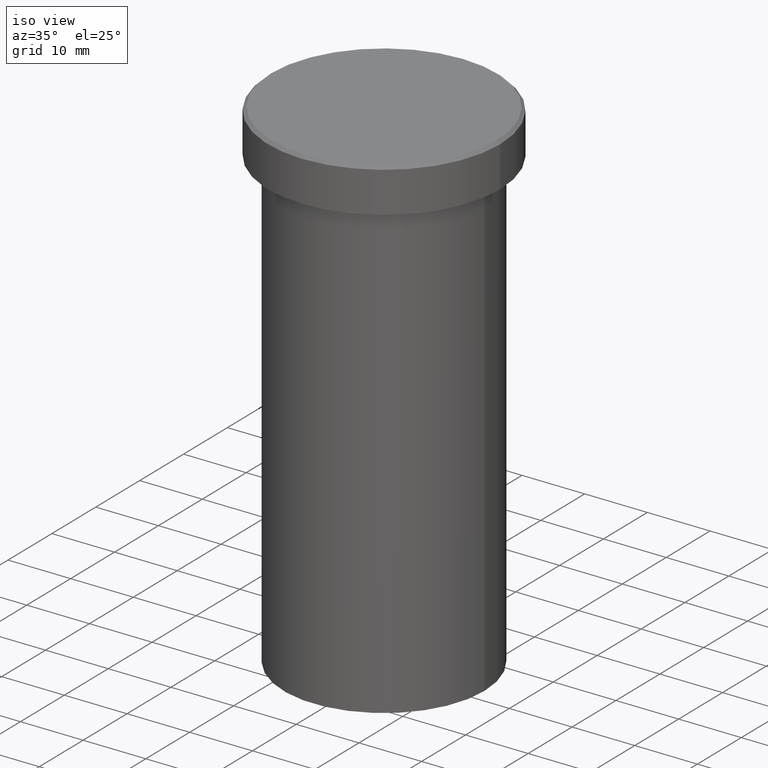
[diagram: clean part render]
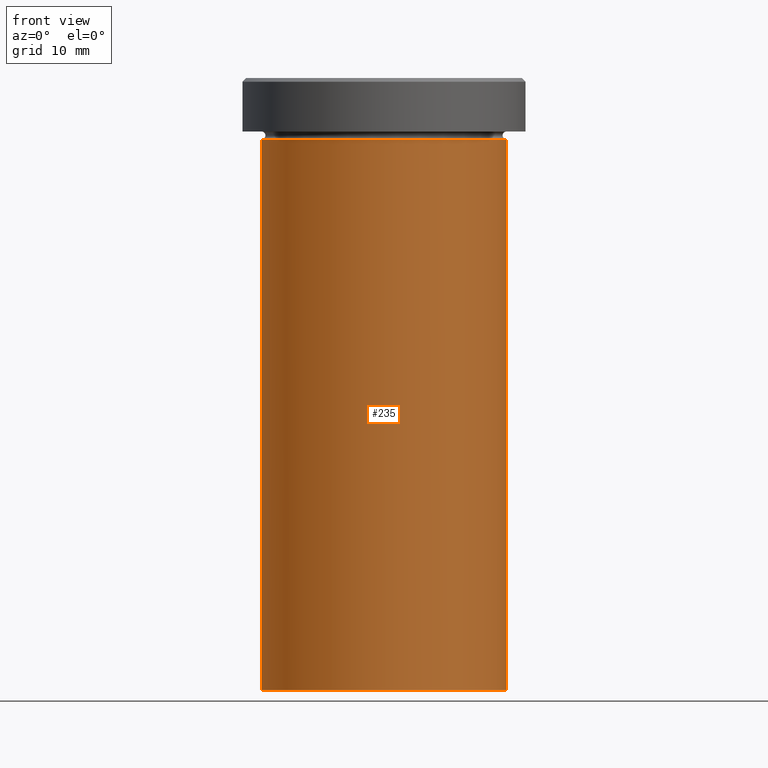
[diagram: tour spotlight — one face highlighted and labeled with its STEP entity id]
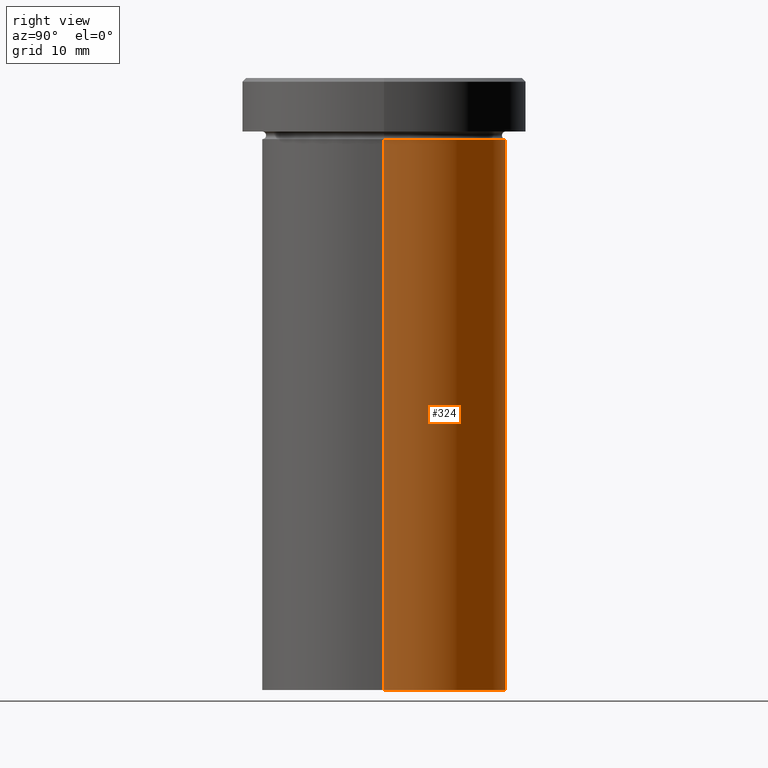
[diagram: tour spotlight — one face highlighted and labeled with its STEP entity id]
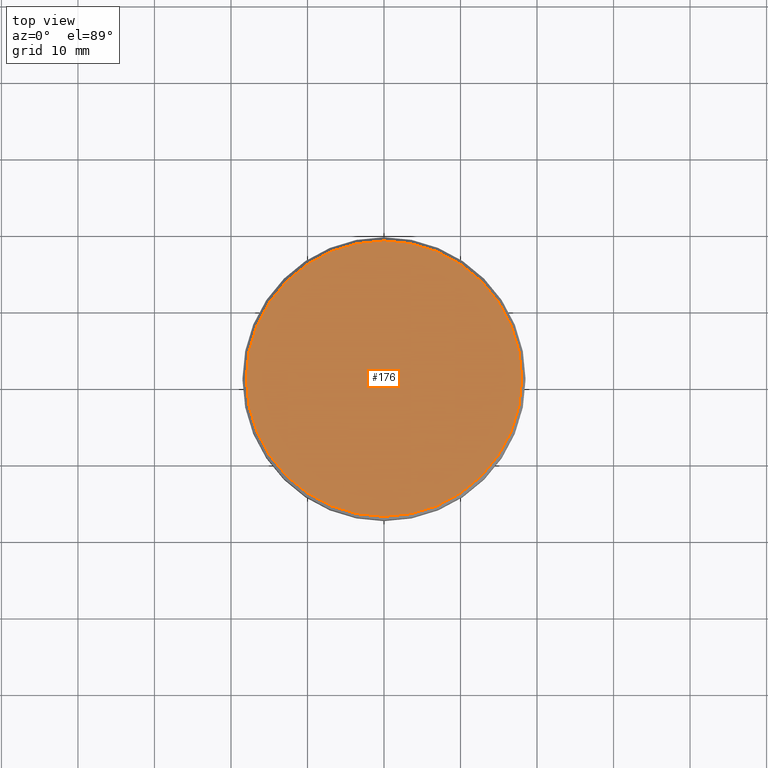
[diagram: tour spotlight — one face highlighted and labeled with its STEP entity id]
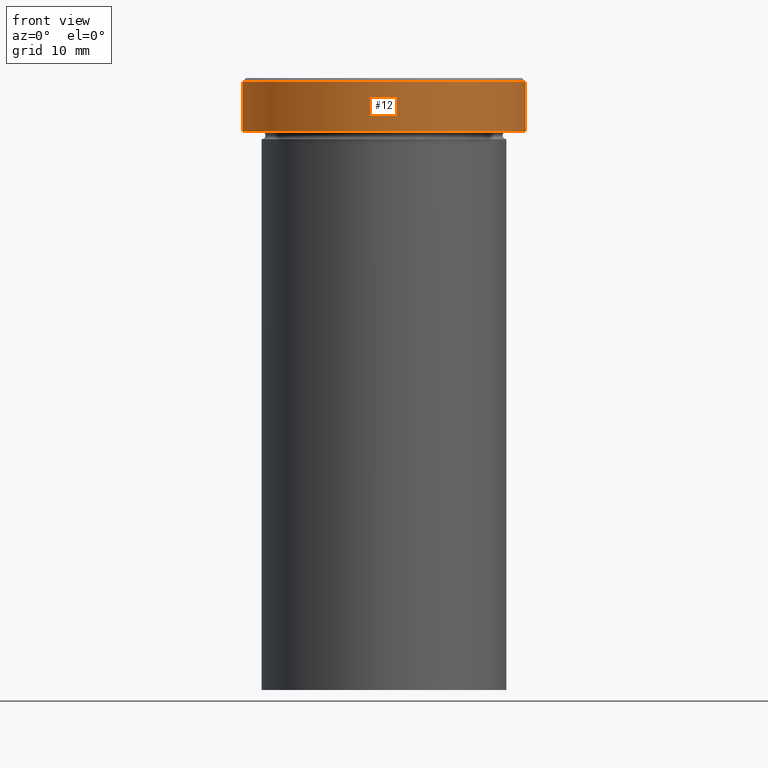
[diagram: tour spotlight — one face highlighted and labeled with its STEP entity id]
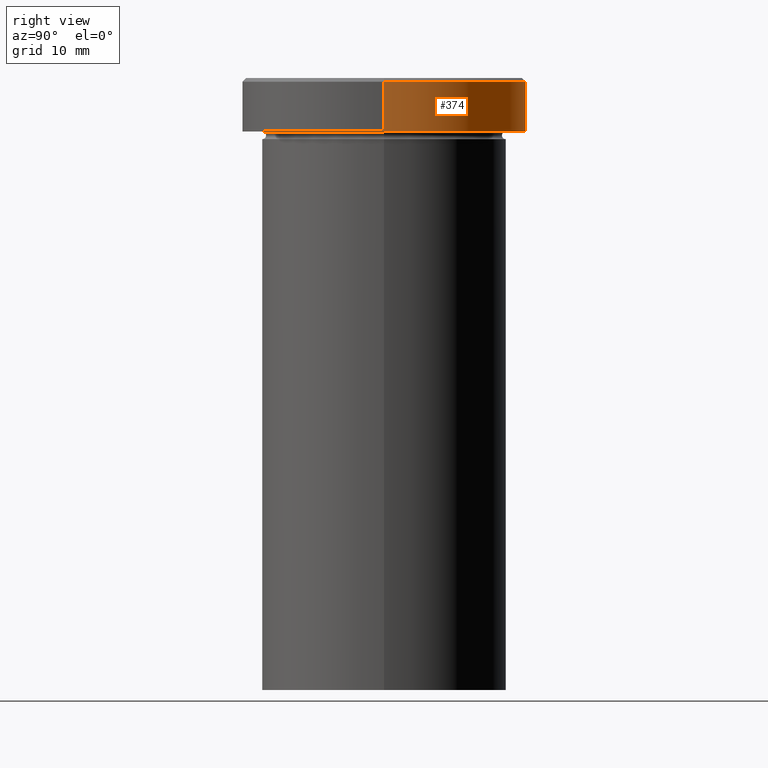
[diagram: tour spotlight — one face highlighted and labeled with its STEP entity id]
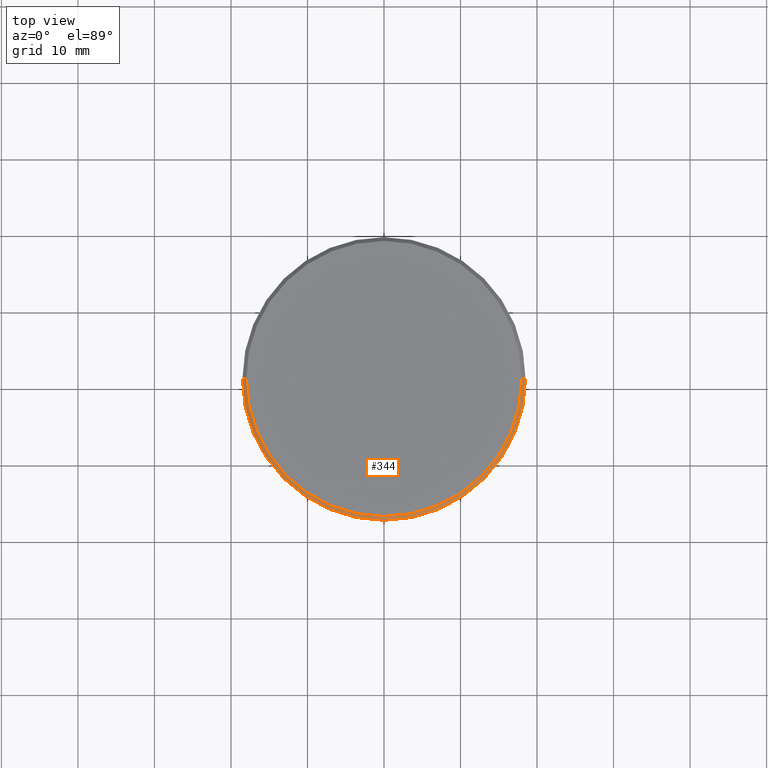
[diagram: tour spotlight — one face highlighted and labeled with its STEP entity id]
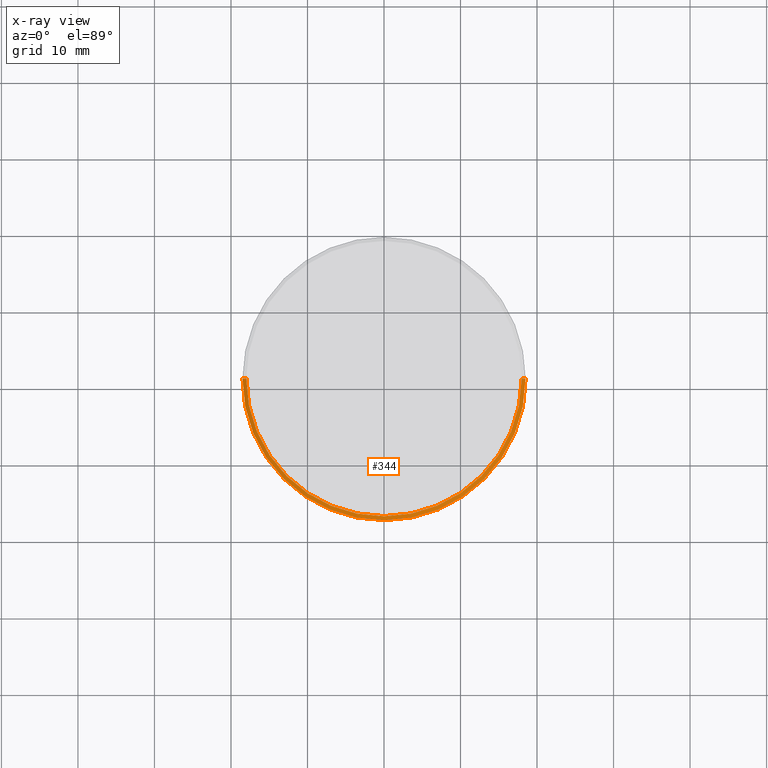
[diagram: x-ray of the same camera — body ghosted, this tour face saturated]
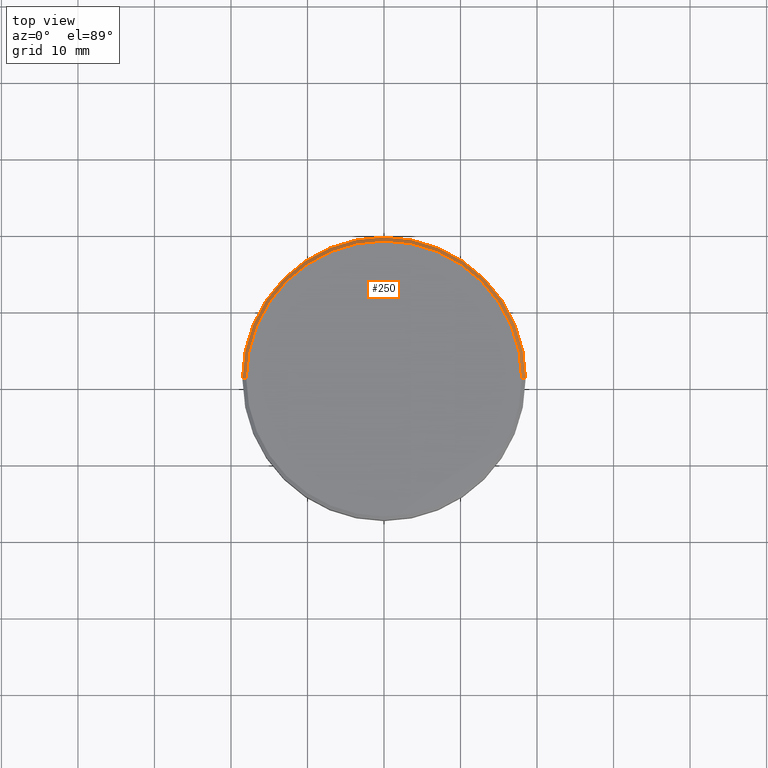
[diagram: tour spotlight — one face highlighted and labeled with its STEP entity id]
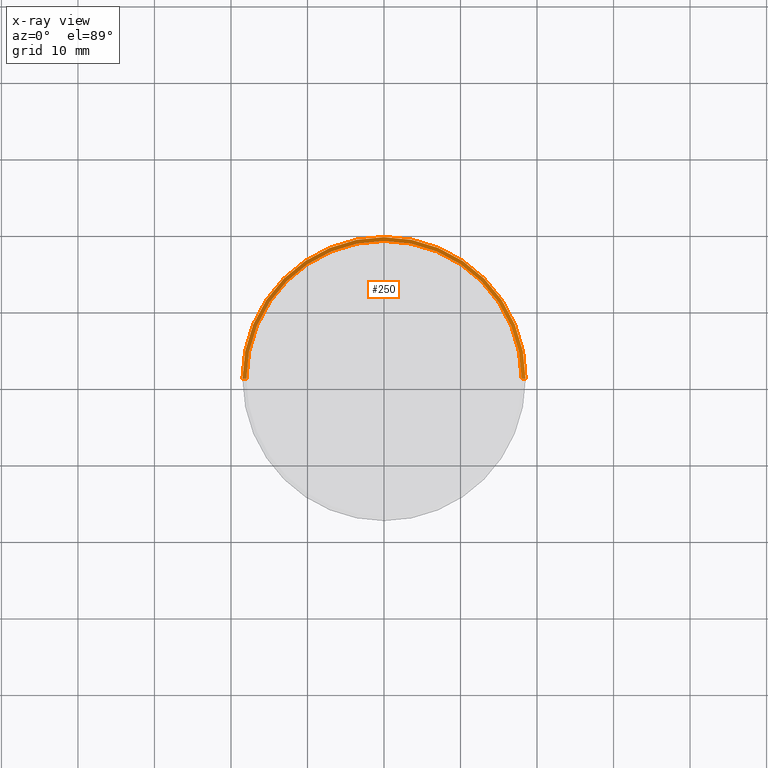
[diagram: x-ray of the same camera — body ghosted, this tour face saturated]
A machine part: a face-by-face anatomy tour. The part has 13 B-rep faces; the first image is the clean iso view, then the 7 largest visible faces are spotlighted one at a time (largest first), each with its STEP entity span.

Face 1 — front view, entity #235. In plain terms, the highlighted cylindrical surface (partial cylindrical patch) has radius 16 mm, axis along (-0, -0, 1).
Definition (entity closure, byte-faithful):
#19 = CARTESIAN_POINT ( 'NONE',  ( 0.000000000000000000, 0.000000000000000000, -80.00000000000000000 ) ) ;
#22 = CARTESIAN_POINT ( 'NONE',  ( 16.00000000000000000, 0.000000000000000000, 0.000000000000000000 ) ) ;
#26 = VERTEX_POINT ( 'NONE', #200 ) ;
#28 = CIRCLE ( 'NONE', #103, 16.00000000000000000 ) ;
#34 = EDGE_LOOP ( 'NONE', ( #343, #405, #262, #67 ) ) ;
#53 = DIRECTION ( 'NONE',  ( -0.000000000000000000, -0.000000000000000000, 1.000000000000000000 ) ) ;
#57 = CARTESIAN_POINT ( 'NONE',  ( -16.00000000000000000, 1.959434878635765131E-15, 0.000000000000000000 ) ) ;
#59 = VERTEX_POINT ( 'NONE', #270 ) ;
#67 = ORIENTED_EDGE ( 'NONE', *, *, #102, .F. ) ;
#79 = EDGE_CURVE ( 'NONE', #59, #283, #82, .T. ) ;
#82 = LINE ( 'NONE', #57, #201 ) ;
#87 = CARTESIAN_POINT ( 'NONE',  ( 0.000000000000000000, 0.000000000000000000, 0.000000000000000000 ) ) ;
#91 = DIRECTION ( 'NONE',  ( 1.000000000000000000, 0.000000000000000000, 0.000000000000000000 ) ) ;
#102 = EDGE_CURVE ( 'NONE', #283, #26, #28, .T. ) ;
#103 = AXIS2_PLACEMENT_3D ( 'NONE', #142, #111, #145 ) ;
#110 = DIRECTION ( 'NONE',  ( -0.000000000000000000, -0.000000000000000000, 1.000000000000000000 ) ) ;
#111 = DIRECTION ( 'NONE',  ( -0.000000000000000000, -0.000000000000000000, 1.000000000000000000 ) ) ;
#142 = CARTESIAN_POINT ( 'NONE',  ( 0.000000000000000000, 0.000000000000000000, -8.000000000000000000 ) ) ;
#145 = DIRECTION ( 'NONE',  ( 1.000000000000000000, 0.000000000000000000, 0.000000000000000000 ) ) ;
#147 = FACE_OUTER_BOUND ( 'NONE', #34, .T. ) ;
#157 = VERTEX_POINT ( 'NONE', #395 ) ;
#200 = CARTESIAN_POINT ( 'NONE',  ( 16.00000000000000000, 0.000000000000000000, -8.000000000000000000 ) ) ;
#201 = VECTOR ( 'NONE', #53, 1000.000000000000000 ) ;
#202 = AXIS2_PLACEMENT_3D ( 'NONE', #19, #406, #91 ) ;
#204 = DIRECTION ( 'NONE',  ( 1.000000000000000000, 0.000000000000000000, 0.000000000000000000 ) ) ;
#235 = ADVANCED_FACE ( 'NONE', ( #147 ), #361, .T. ) ;
#253 = EDGE_CURVE ( 'NONE', #157, #26, #272, .T. ) ;
#254 = VECTOR ( 'NONE', #299, 1000.000000000000000 ) ;
#262 = ORIENTED_EDGE ( 'NONE', *, *, #253, .T. ) ;
#270 = CARTESIAN_POINT ( 'NONE',  ( -16.00000000000000000, 1.959434878635765131E-15, -80.00000000000000000 ) ) ;
#272 = LINE ( 'NONE', #22, #254 ) ;
#283 = VERTEX_POINT ( 'NONE', #333 ) ;
#299 = DIRECTION ( 'NONE',  ( -0.000000000000000000, -0.000000000000000000, 1.000000000000000000 ) ) ;
#310 = CIRCLE ( 'NONE', #202, 16.00000000000000000 ) ;
#333 = CARTESIAN_POINT ( 'NONE',  ( -16.00000000000000000, 1.959434878635765131E-15, -8.000000000000000000 ) ) ;
#343 = ORIENTED_EDGE ( 'NONE', *, *, #79, .F. ) ;
#359 = AXIS2_PLACEMENT_3D ( 'NONE', #87, #110, #204 ) ;
#361 = CYLINDRICAL_SURFACE ( 'NONE', #359, 16.00000000000000000 ) ;
#379 = EDGE_CURVE ( 'NONE', #59, #157, #310, .T. ) ;
#395 = CARTESIAN_POINT ( 'NONE',  ( 16.00000000000000000, 0.000000000000000000, -80.00000000000000000 ) ) ;
#405 = ORIENTED_EDGE ( 'NONE', *, *, #379, .T. ) ;
#406 = DIRECTION ( 'NONE',  ( -0.000000000000000000, -0.000000000000000000, 1.000000000000000000 ) ) ;

Face 2 — right view, entity #324. In plain terms, the highlighted cylindrical surface (partial cylindrical patch) has radius 16 mm, axis along (-0, -0, 1).
Definition (entity closure, byte-faithful):
#7 = DIRECTION ( 'NONE',  ( 1.000000000000000000, 0.000000000000000000, 0.000000000000000000 ) ) ;
#22 = CARTESIAN_POINT ( 'NONE',  ( 16.00000000000000000, 0.000000000000000000, 0.000000000000000000 ) ) ;
#24 = EDGE_CURVE ( 'NONE', #26, #283, #271, .T. ) ;
#26 = VERTEX_POINT ( 'NONE', #200 ) ;
#32 = ORIENTED_EDGE ( 'NONE', *, *, #50, .T. ) ;
#41 = CARTESIAN_POINT ( 'NONE',  ( 0.000000000000000000, 0.000000000000000000, -80.00000000000000000 ) ) ;
#45 = ORIENTED_EDGE ( 'NONE', *, *, #24, .F. ) ;
#50 = EDGE_CURVE ( 'NONE', #157, #59, #371, .T. ) ;
#53 = DIRECTION ( 'NONE',  ( -0.000000000000000000, -0.000000000000000000, 1.000000000000000000 ) ) ;
#57 = CARTESIAN_POINT ( 'NONE',  ( -16.00000000000000000, 1.959434878635765131E-15, 0.000000000000000000 ) ) ;
#59 = VERTEX_POINT ( 'NONE', #270 ) ;
#63 = FACE_OUTER_BOUND ( 'NONE', #171, .T. ) ;
#79 = EDGE_CURVE ( 'NONE', #59, #283, #82, .T. ) ;
#82 = LINE ( 'NONE', #57, #201 ) ;
#88 = CARTESIAN_POINT ( 'NONE',  ( 0.000000000000000000, 0.000000000000000000, 0.000000000000000000 ) ) ;
#140 = DIRECTION ( 'NONE',  ( -0.000000000000000000, -0.000000000000000000, 1.000000000000000000 ) ) ;
#157 = VERTEX_POINT ( 'NONE', #395 ) ;
#160 = AXIS2_PLACEMENT_3D ( 'NONE', #41, #163, #7 ) ;
#163 = DIRECTION ( 'NONE',  ( -0.000000000000000000, -0.000000000000000000, 1.000000000000000000 ) ) ;
#171 = EDGE_LOOP ( 'NONE', ( #32, #346, #45, #363 ) ) ;
#200 = CARTESIAN_POINT ( 'NONE',  ( 16.00000000000000000, 0.000000000000000000, -8.000000000000000000 ) ) ;
#201 = VECTOR ( 'NONE', #53, 1000.000000000000000 ) ;
#231 = CARTESIAN_POINT ( 'NONE',  ( 0.000000000000000000, 0.000000000000000000, -8.000000000000000000 ) ) ;
#246 = DIRECTION ( 'NONE',  ( 1.000000000000000000, 0.000000000000000000, 0.000000000000000000 ) ) ;
#251 = CYLINDRICAL_SURFACE ( 'NONE', #277, 16.00000000000000000 ) ;
#253 = EDGE_CURVE ( 'NONE', #157, #26, #272, .T. ) ;
#254 = VECTOR ( 'NONE', #299, 1000.000000000000000 ) ;
#270 = CARTESIAN_POINT ( 'NONE',  ( -16.00000000000000000, 1.959434878635765131E-15, -80.00000000000000000 ) ) ;
#271 = CIRCLE ( 'NONE', #365, 16.00000000000000000 ) ;
#272 = LINE ( 'NONE', #22, #254 ) ;
#277 = AXIS2_PLACEMENT_3D ( 'NONE', #88, #337, #246 ) ;
#283 = VERTEX_POINT ( 'NONE', #333 ) ;
#299 = DIRECTION ( 'NONE',  ( -0.000000000000000000, -0.000000000000000000, 1.000000000000000000 ) ) ;
#324 = ADVANCED_FACE ( 'NONE', ( #63 ), #251, .T. ) ;
#333 = CARTESIAN_POINT ( 'NONE',  ( -16.00000000000000000, 1.959434878635765131E-15, -8.000000000000000000 ) ) ;
#337 = DIRECTION ( 'NONE',  ( -0.000000000000000000, -0.000000000000000000, 1.000000000000000000 ) ) ;
#346 = ORIENTED_EDGE ( 'NONE', *, *, #79, .T. ) ;
#363 = ORIENTED_EDGE ( 'NONE', *, *, #253, .F. ) ;
#365 = AXIS2_PLACEMENT_3D ( 'NONE', #231, #140, #389 ) ;
#371 = CIRCLE ( 'NONE', #160, 16.00000000000000000 ) ;
#389 = DIRECTION ( 'NONE',  ( 1.000000000000000000, 0.000000000000000000, 0.000000000000000000 ) ) ;
#395 = CARTESIAN_POINT ( 'NONE',  ( 16.00000000000000000, 0.000000000000000000, -80.00000000000000000 ) ) ;

Face 3 — top view, entity #176. In plain terms, the highlighted planar face has unit normal (0, -0, 1).
Definition (entity closure, byte-faithful):
#1 = AXIS2_PLACEMENT_3D ( 'NONE', #48, #394, #180 ) ;
#2 = AXIS2_PLACEMENT_3D ( 'NONE', #370, #89, #249 ) ;
#14 = PLANE ( 'NONE',  #1 ) ;
#48 = CARTESIAN_POINT ( 'NONE',  ( 0.000000000000000000, 0.000000000000000000, 0.000000000000000000 ) ) ;
#89 = DIRECTION ( 'NONE',  ( -0.000000000000000000, -0.000000000000000000, 1.000000000000000000 ) ) ;
#172 = FACE_OUTER_BOUND ( 'NONE', #307, .T. ) ;
#176 = ADVANCED_FACE ( 'NONE', ( #172 ), #14, .T. ) ;
#180 = DIRECTION ( 'NONE',  ( 1.000000000000000000, 0.000000000000000000, 0.000000000000000000 ) ) ;
#186 = VERTEX_POINT ( 'NONE', #356 ) ;
#191 = EDGE_CURVE ( 'NONE', #353, #186, #196, .T. ) ;
#196 = CIRCLE ( 'NONE', #316, 17.99999999999998934 ) ;
#249 = DIRECTION ( 'NONE',  ( 1.000000000000000000, 0.000000000000000000, 0.000000000000000000 ) ) ;
#295 = CARTESIAN_POINT ( 'NONE',  ( 0.000000000000000000, 0.000000000000000000, 0.000000000000000000 ) ) ;
#307 = EDGE_LOOP ( 'NONE', ( #399, #408 ) ) ;
#316 = AXIS2_PLACEMENT_3D ( 'NONE', #295, #358, #329 ) ;
#329 = DIRECTION ( 'NONE',  ( 1.000000000000000000, 0.000000000000000000, 0.000000000000000000 ) ) ;
#353 = VERTEX_POINT ( 'NONE', #364 ) ;
#356 = CARTESIAN_POINT ( 'NONE',  ( -17.99999999999998934, 0.000000000000000000, 0.000000000000000000 ) ) ;
#358 = DIRECTION ( 'NONE',  ( -0.000000000000000000, -0.000000000000000000, 1.000000000000000000 ) ) ;
#360 = CIRCLE ( 'NONE', #2, 17.99999999999998934 ) ;
#364 = CARTESIAN_POINT ( 'NONE',  ( 17.99999999999998934, 2.234980408443918820E-15, 0.000000000000000000 ) ) ;
#370 = CARTESIAN_POINT ( 'NONE',  ( 0.000000000000000000, 0.000000000000000000, 0.000000000000000000 ) ) ;
#376 = EDGE_CURVE ( 'NONE', #186, #353, #360, .T. ) ;
#394 = DIRECTION ( 'NONE',  ( 0.000000000000000000, -0.000000000000000000, 1.000000000000000000 ) ) ;
#399 = ORIENTED_EDGE ( 'NONE', *, *, #376, .T. ) ;
#408 = ORIENTED_EDGE ( 'NONE', *, *, #191, .T. ) ;

Face 4 — front view, entity #12. In plain terms, the highlighted cylindrical surface (partial cylindrical patch) has radius 18.5 mm, axis along (-0, -0, 1).
Definition (entity closure, byte-faithful):
#8 = EDGE_CURVE ( 'NONE', #279, #90, #46, .T. ) ;
#11 = DIRECTION ( 'NONE',  ( 1.000000000000000000, 0.000000000000000000, 0.000000000000000000 ) ) ;
#12 = ADVANCED_FACE ( 'NONE', ( #43 ), #74, .T. ) ;
#43 = FACE_OUTER_BOUND ( 'NONE', #124, .T. ) ;
#46 = CIRCLE ( 'NONE', #168, 18.50000000000000000 ) ;
#52 = EDGE_CURVE ( 'NONE', #97, #381, #391, .T. ) ;
#58 = AXIS2_PLACEMENT_3D ( 'NONE', #99, #321, #11 ) ;
#74 = CYLINDRICAL_SURFACE ( 'NONE', #58, 18.50000000000000000 ) ;
#85 = DIRECTION ( 'NONE',  ( -0.000000000000000000, -0.000000000000000000, 1.000000000000000000 ) ) ;
#86 = EDGE_CURVE ( 'NONE', #279, #381, #332, .T. ) ;
#90 = VERTEX_POINT ( 'NONE', #239 ) ;
#94 = VECTOR ( 'NONE', #85, 1000.000000000000000 ) ;
#97 = VERTEX_POINT ( 'NONE', #240 ) ;
#99 = CARTESIAN_POINT ( 'NONE',  ( 0.000000000000000000, 0.000000000000000000, 0.000000000000000000 ) ) ;
#124 = EDGE_LOOP ( 'NONE', ( #199, #128, #184, #292 ) ) ;
#128 = ORIENTED_EDGE ( 'NONE', *, *, #8, .T. ) ;
#129 = VECTOR ( 'NONE', #305, 1000.000000000000000 ) ;
#131 = CARTESIAN_POINT ( 'NONE',  ( 0.000000000000000000, 0.000000000000000000, -6.999999999999999112 ) ) ;
#136 = DIRECTION ( 'NONE',  ( 0.000000000000000000, 0.000000000000000000, -1.000000000000000000 ) ) ;
#168 = AXIS2_PLACEMENT_3D ( 'NONE', #131, #258, #378 ) ;
#184 = ORIENTED_EDGE ( 'NONE', *, *, #306, .T. ) ;
#199 = ORIENTED_EDGE ( 'NONE', *, *, #86, .F. ) ;
#219 = LINE ( 'NONE', #302, #129 ) ;
#239 = CARTESIAN_POINT ( 'NONE',  ( 18.50000000000000000, 0.000000000000000000, -6.999999999999999112 ) ) ;
#240 = CARTESIAN_POINT ( 'NONE',  ( 18.50000000000000000, 0.000000000000000000, -0.5000000000000213163 ) ) ;
#258 = DIRECTION ( 'NONE',  ( -0.000000000000000000, -0.000000000000000000, 1.000000000000000000 ) ) ;
#264 = DIRECTION ( 'NONE',  ( 1.000000000000000000, 0.000000000000000000, 0.000000000000000000 ) ) ;
#265 = CARTESIAN_POINT ( 'NONE',  ( -18.50000000000000000, 2.265596578422603396E-15, 0.000000000000000000 ) ) ;
#279 = VERTEX_POINT ( 'NONE', #397 ) ;
#284 = AXIS2_PLACEMENT_3D ( 'NONE', #288, #136, #264 ) ;
#288 = CARTESIAN_POINT ( 'NONE',  ( 0.000000000000000000, 0.000000000000000000, -0.5000000000000213163 ) ) ;
#292 = ORIENTED_EDGE ( 'NONE', *, *, #52, .T. ) ;
#302 = CARTESIAN_POINT ( 'NONE',  ( 18.50000000000000000, 0.000000000000000000, 0.000000000000000000 ) ) ;
#305 = DIRECTION ( 'NONE',  ( -0.000000000000000000, -0.000000000000000000, 1.000000000000000000 ) ) ;
#306 = EDGE_CURVE ( 'NONE', #90, #97, #219, .T. ) ;
#311 = CARTESIAN_POINT ( 'NONE',  ( -18.50000000000000000, 2.265596578422603396E-15, -0.5000000000000213163 ) ) ;
#321 = DIRECTION ( 'NONE',  ( -0.000000000000000000, -0.000000000000000000, 1.000000000000000000 ) ) ;
#332 = LINE ( 'NONE', #265, #94 ) ;
#378 = DIRECTION ( 'NONE',  ( 1.000000000000000000, 0.000000000000000000, 0.000000000000000000 ) ) ;
#381 = VERTEX_POINT ( 'NONE', #311 ) ;
#391 = CIRCLE ( 'NONE', #284, 18.50000000000000000 ) ;
#397 = CARTESIAN_POINT ( 'NONE',  ( -18.50000000000000000, 2.265596578422603396E-15, -6.999999999999999112 ) ) ;

Face 5 — right view, entity #374. In plain terms, the highlighted cylindrical surface (partial cylindrical patch) has radius 18.5 mm, axis along (-0, -0, 1).
Definition (entity closure, byte-faithful):
#17 = DIRECTION ( 'NONE',  ( 1.000000000000000000, 0.000000000000000000, 0.000000000000000000 ) ) ;
#18 = CARTESIAN_POINT ( 'NONE',  ( 0.000000000000000000, 0.000000000000000000, -6.999999999999999112 ) ) ;
#20 = AXIS2_PLACEMENT_3D ( 'NONE', #221, #62, #188 ) ;
#62 = DIRECTION ( 'NONE',  ( -0.000000000000000000, -0.000000000000000000, 1.000000000000000000 ) ) ;
#78 = CIRCLE ( 'NONE', #208, 18.50000000000000000 ) ;
#85 = DIRECTION ( 'NONE',  ( -0.000000000000000000, -0.000000000000000000, 1.000000000000000000 ) ) ;
#86 = EDGE_CURVE ( 'NONE', #279, #381, #332, .T. ) ;
#90 = VERTEX_POINT ( 'NONE', #239 ) ;
#94 = VECTOR ( 'NONE', #85, 1000.000000000000000 ) ;
#97 = VERTEX_POINT ( 'NONE', #240 ) ;
#113 = EDGE_CURVE ( 'NONE', #90, #279, #78, .T. ) ;
#120 = DIRECTION ( 'NONE',  ( 1.000000000000000000, 0.000000000000000000, 0.000000000000000000 ) ) ;
#126 = CYLINDRICAL_SURFACE ( 'NONE', #20, 18.50000000000000000 ) ;
#129 = VECTOR ( 'NONE', #305, 1000.000000000000000 ) ;
#183 = FACE_OUTER_BOUND ( 'NONE', #326, .T. ) ;
#188 = DIRECTION ( 'NONE',  ( 1.000000000000000000, 0.000000000000000000, 0.000000000000000000 ) ) ;
#198 = ORIENTED_EDGE ( 'NONE', *, *, #86, .T. ) ;
#208 = AXIS2_PLACEMENT_3D ( 'NONE', #18, #327, #17 ) ;
#219 = LINE ( 'NONE', #302, #129 ) ;
#221 = CARTESIAN_POINT ( 'NONE',  ( 0.000000000000000000, 0.000000000000000000, 0.000000000000000000 ) ) ;
#239 = CARTESIAN_POINT ( 'NONE',  ( 18.50000000000000000, 0.000000000000000000, -6.999999999999999112 ) ) ;
#240 = CARTESIAN_POINT ( 'NONE',  ( 18.50000000000000000, 0.000000000000000000, -0.5000000000000213163 ) ) ;
#256 = ORIENTED_EDGE ( 'NONE', *, *, #113, .T. ) ;
#265 = CARTESIAN_POINT ( 'NONE',  ( -18.50000000000000000, 2.265596578422603396E-15, 0.000000000000000000 ) ) ;
#279 = VERTEX_POINT ( 'NONE', #397 ) ;
#281 = CARTESIAN_POINT ( 'NONE',  ( 0.000000000000000000, 0.000000000000000000, -0.5000000000000213163 ) ) ;
#286 = ORIENTED_EDGE ( 'NONE', *, *, #306, .F. ) ;
#302 = CARTESIAN_POINT ( 'NONE',  ( 18.50000000000000000, 0.000000000000000000, 0.000000000000000000 ) ) ;
#304 = ORIENTED_EDGE ( 'NONE', *, *, #367, .T. ) ;
#305 = DIRECTION ( 'NONE',  ( -0.000000000000000000, -0.000000000000000000, 1.000000000000000000 ) ) ;
#306 = EDGE_CURVE ( 'NONE', #90, #97, #219, .T. ) ;
#311 = CARTESIAN_POINT ( 'NONE',  ( -18.50000000000000000, 2.265596578422603396E-15, -0.5000000000000213163 ) ) ;
#326 = EDGE_LOOP ( 'NONE', ( #256, #198, #304, #286 ) ) ;
#327 = DIRECTION ( 'NONE',  ( -0.000000000000000000, -0.000000000000000000, 1.000000000000000000 ) ) ;
#330 = CIRCLE ( 'NONE', #372, 18.50000000000000000 ) ;
#332 = LINE ( 'NONE', #265, #94 ) ;
#338 = DIRECTION ( 'NONE',  ( 0.000000000000000000, 0.000000000000000000, -1.000000000000000000 ) ) ;
#367 = EDGE_CURVE ( 'NONE', #381, #97, #330, .T. ) ;
#372 = AXIS2_PLACEMENT_3D ( 'NONE', #281, #338, #120 ) ;
#374 = ADVANCED_FACE ( 'NONE', ( #183 ), #126, .T. ) ;
#381 = VERTEX_POINT ( 'NONE', #311 ) ;
#397 = CARTESIAN_POINT ( 'NONE',  ( -18.50000000000000000, 2.265596578422603396E-15, -6.999999999999999112 ) ) ;

Face 6 — top view, entity #344. An x-ray twin of the same camera follows (body ghosted, this face saturated) — the face is partly hidden behind the body. In plain terms, the highlighted conical surface has half-angle 45 deg.
Definition (entity closure, byte-faithful):
#2 = AXIS2_PLACEMENT_3D ( 'NONE', #370, #89, #249 ) ;
#13 = LINE ( 'NONE', #390, #153 ) ;
#47 = ORIENTED_EDGE ( 'NONE', *, *, #125, .F. ) ;
#52 = EDGE_CURVE ( 'NONE', #97, #381, #391, .T. ) ;
#81 = CARTESIAN_POINT ( 'NONE',  ( -17.99999999999998934, 0.000000000000000000, 0.000000000000000000 ) ) ;
#84 = AXIS2_PLACEMENT_3D ( 'NONE', #400, #216, #92 ) ;
#89 = DIRECTION ( 'NONE',  ( -0.000000000000000000, -0.000000000000000000, 1.000000000000000000 ) ) ;
#92 = DIRECTION ( 'NONE',  ( -1.000000000000000000, 0.000000000000000000, 0.000000000000000000 ) ) ;
#97 = VERTEX_POINT ( 'NONE', #240 ) ;
#125 = EDGE_CURVE ( 'NONE', #353, #97, #13, .T. ) ;
#136 = DIRECTION ( 'NONE',  ( 0.000000000000000000, 0.000000000000000000, -1.000000000000000000 ) ) ;
#153 = VECTOR ( 'NONE', #207, 1000.000000000000114 ) ;
#186 = VERTEX_POINT ( 'NONE', #356 ) ;
#197 = CONICAL_SURFACE ( 'NONE', #84, 17.99999999999998934, 0.7853981633974380649 ) ;
#207 = DIRECTION ( 'NONE',  ( 0.7071067811865402453, 8.659560562354844111E-17, -0.7071067811865549002 ) ) ;
#216 = DIRECTION ( 'NONE',  ( 0.000000000000000000, 0.000000000000000000, -1.000000000000000000 ) ) ;
#238 = EDGE_CURVE ( 'NONE', #186, #381, #355, .T. ) ;
#240 = CARTESIAN_POINT ( 'NONE',  ( 18.50000000000000000, 0.000000000000000000, -0.5000000000000213163 ) ) ;
#249 = DIRECTION ( 'NONE',  ( 1.000000000000000000, 0.000000000000000000, 0.000000000000000000 ) ) ;
#260 = ORIENTED_EDGE ( 'NONE', *, *, #376, .F. ) ;
#264 = DIRECTION ( 'NONE',  ( 1.000000000000000000, 0.000000000000000000, 0.000000000000000000 ) ) ;
#282 = ORIENTED_EDGE ( 'NONE', *, *, #52, .F. ) ;
#284 = AXIS2_PLACEMENT_3D ( 'NONE', #288, #136, #264 ) ;
#288 = CARTESIAN_POINT ( 'NONE',  ( 0.000000000000000000, 0.000000000000000000, -0.5000000000000213163 ) ) ;
#311 = CARTESIAN_POINT ( 'NONE',  ( -18.50000000000000000, 2.265596578422603396E-15, -0.5000000000000213163 ) ) ;
#325 = VECTOR ( 'NONE', #328, 1000.000000000000114 ) ;
#328 = DIRECTION ( 'NONE',  ( -0.7071067811865402453, 0.000000000000000000, -0.7071067811865549002 ) ) ;
#336 = EDGE_LOOP ( 'NONE', ( #47, #260, #386, #282 ) ) ;
#344 = ADVANCED_FACE ( 'NONE', ( #368 ), #197, .T. ) ;
#353 = VERTEX_POINT ( 'NONE', #364 ) ;
#355 = LINE ( 'NONE', #81, #325 ) ;
#356 = CARTESIAN_POINT ( 'NONE',  ( -17.99999999999998934, 0.000000000000000000, 0.000000000000000000 ) ) ;
#360 = CIRCLE ( 'NONE', #2, 17.99999999999998934 ) ;
#364 = CARTESIAN_POINT ( 'NONE',  ( 17.99999999999998934, 2.234980408443918820E-15, 0.000000000000000000 ) ) ;
#368 = FACE_OUTER_BOUND ( 'NONE', #336, .T. ) ;
#370 = CARTESIAN_POINT ( 'NONE',  ( 0.000000000000000000, 0.000000000000000000, 0.000000000000000000 ) ) ;
#376 = EDGE_CURVE ( 'NONE', #186, #353, #360, .T. ) ;
#381 = VERTEX_POINT ( 'NONE', #311 ) ;
#386 = ORIENTED_EDGE ( 'NONE', *, *, #238, .T. ) ;
#390 = CARTESIAN_POINT ( 'NONE',  ( 17.99999999999998934, 2.204364238465234244E-15, 0.000000000000000000 ) ) ;
#391 = CIRCLE ( 'NONE', #284, 18.50000000000000000 ) ;
#400 = CARTESIAN_POINT ( 'NONE',  ( 0.000000000000000000, 0.000000000000000000, 0.000000000000000000 ) ) ;

Face 7 — top view, entity #250. An x-ray twin of the same camera follows (body ghosted, this face saturated) — the face is partly hidden behind the body. In plain terms, the highlighted conical surface has half-angle 45 deg.
Definition (entity closure, byte-faithful):
#3 = EDGE_LOOP ( 'NONE', ( #107, #36, #217, #155 ) ) ;
#13 = LINE ( 'NONE', #390, #153 ) ;
#15 = CONICAL_SURFACE ( 'NONE', #241, 17.99999999999998934, 0.7853981633974380649 ) ;
#25 = DIRECTION ( 'NONE',  ( 0.000000000000000000, 0.000000000000000000, -1.000000000000000000 ) ) ;
#36 = ORIENTED_EDGE ( 'NONE', *, *, #125, .T. ) ;
#81 = CARTESIAN_POINT ( 'NONE',  ( -17.99999999999998934, 0.000000000000000000, 0.000000000000000000 ) ) ;
#97 = VERTEX_POINT ( 'NONE', #240 ) ;
#107 = ORIENTED_EDGE ( 'NONE', *, *, #191, .F. ) ;
#120 = DIRECTION ( 'NONE',  ( 1.000000000000000000, 0.000000000000000000, 0.000000000000000000 ) ) ;
#125 = EDGE_CURVE ( 'NONE', #353, #97, #13, .T. ) ;
#153 = VECTOR ( 'NONE', #207, 1000.000000000000114 ) ;
#155 = ORIENTED_EDGE ( 'NONE', *, *, #238, .F. ) ;
#174 = FACE_OUTER_BOUND ( 'NONE', #3, .T. ) ;
#186 = VERTEX_POINT ( 'NONE', #356 ) ;
#191 = EDGE_CURVE ( 'NONE', #353, #186, #196, .T. ) ;
#196 = CIRCLE ( 'NONE', #316, 17.99999999999998934 ) ;
#207 = DIRECTION ( 'NONE',  ( 0.7071067811865402453, 8.659560562354844111E-17, -0.7071067811865549002 ) ) ;
#217 = ORIENTED_EDGE ( 'NONE', *, *, #367, .F. ) ;
#238 = EDGE_CURVE ( 'NONE', #186, #381, #355, .T. ) ;
#240 = CARTESIAN_POINT ( 'NONE',  ( 18.50000000000000000, 0.000000000000000000, -0.5000000000000213163 ) ) ;
#241 = AXIS2_PLACEMENT_3D ( 'NONE', #296, #25, #303 ) ;
#250 = ADVANCED_FACE ( 'NONE', ( #174 ), #15, .T. ) ;
#281 = CARTESIAN_POINT ( 'NONE',  ( 0.000000000000000000, 0.000000000000000000, -0.5000000000000213163 ) ) ;
#295 = CARTESIAN_POINT ( 'NONE',  ( 0.000000000000000000, 0.000000000000000000, 0.000000000000000000 ) ) ;
#296 = CARTESIAN_POINT ( 'NONE',  ( 0.000000000000000000, 0.000000000000000000, 0.000000000000000000 ) ) ;
#303 = DIRECTION ( 'NONE',  ( -1.000000000000000000, 0.000000000000000000, 0.000000000000000000 ) ) ;
#311 = CARTESIAN_POINT ( 'NONE',  ( -18.50000000000000000, 2.265596578422603396E-15, -0.5000000000000213163 ) ) ;
#316 = AXIS2_PLACEMENT_3D ( 'NONE', #295, #358, #329 ) ;
#325 = VECTOR ( 'NONE', #328, 1000.000000000000114 ) ;
#328 = DIRECTION ( 'NONE',  ( -0.7071067811865402453, 0.000000000000000000, -0.7071067811865549002 ) ) ;
#329 = DIRECTION ( 'NONE',  ( 1.000000000000000000, 0.000000000000000000, 0.000000000000000000 ) ) ;
#330 = CIRCLE ( 'NONE', #372, 18.50000000000000000 ) ;
#338 = DIRECTION ( 'NONE',  ( 0.000000000000000000, 0.000000000000000000, -1.000000000000000000 ) ) ;
#353 = VERTEX_POINT ( 'NONE', #364 ) ;
#355 = LINE ( 'NONE', #81, #325 ) ;
#356 = CARTESIAN_POINT ( 'NONE',  ( -17.99999999999998934, 0.000000000000000000, 0.000000000000000000 ) ) ;
#358 = DIRECTION ( 'NONE',  ( -0.000000000000000000, -0.000000000000000000, 1.000000000000000000 ) ) ;
#364 = CARTESIAN_POINT ( 'NONE',  ( 17.99999999999998934, 2.234980408443918820E-15, 0.000000000000000000 ) ) ;
#367 = EDGE_CURVE ( 'NONE', #381, #97, #330, .T. ) ;
#372 = AXIS2_PLACEMENT_3D ( 'NONE', #281, #338, #120 ) ;
#381 = VERTEX_POINT ( 'NONE', #311 ) ;
#390 = CARTESIAN_POINT ( 'NONE',  ( 17.99999999999998934, 2.204364238465234244E-15, 0.000000000000000000 ) ) ;